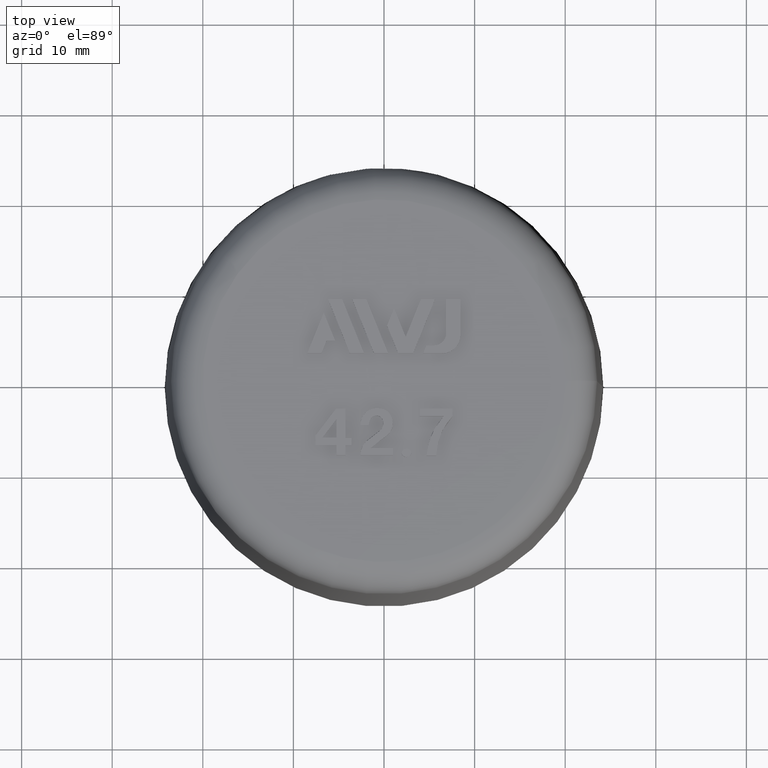
[diagram: clean part render]
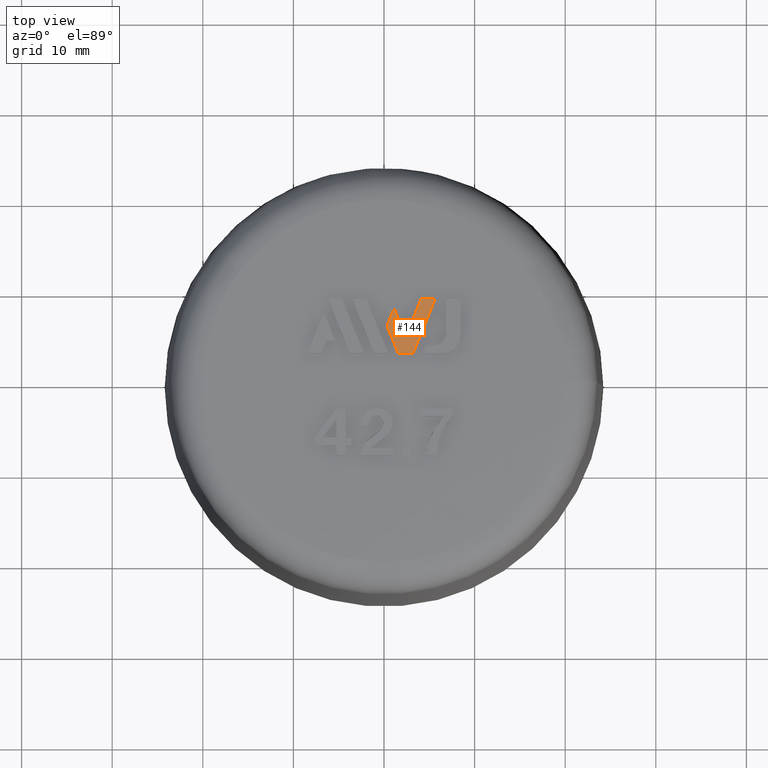
[diagram: same view with one face highlighted and labeled with its STEP entity id]
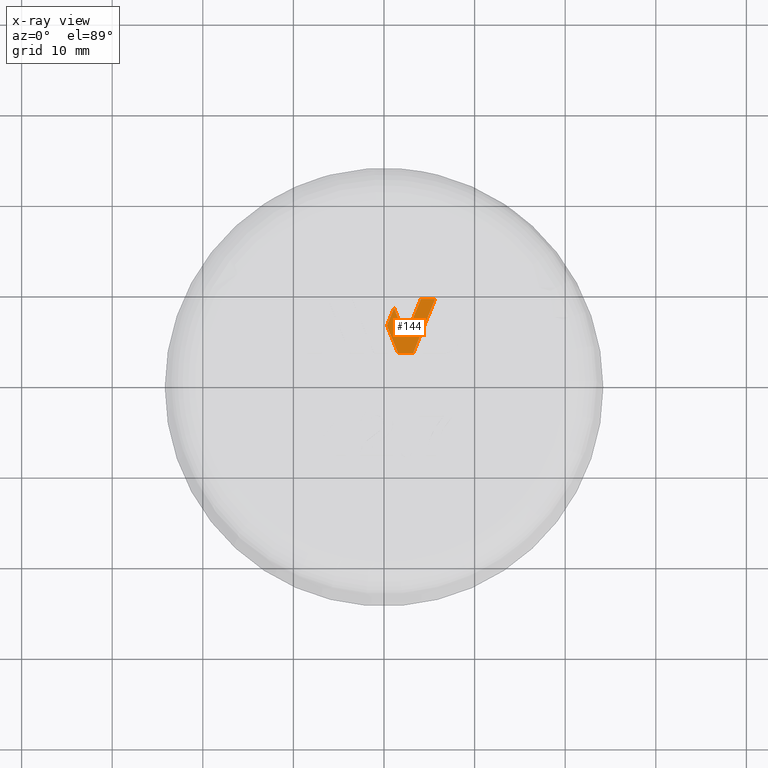
[diagram: x-ray of the same camera — body ghosted, the highlighted face saturated]
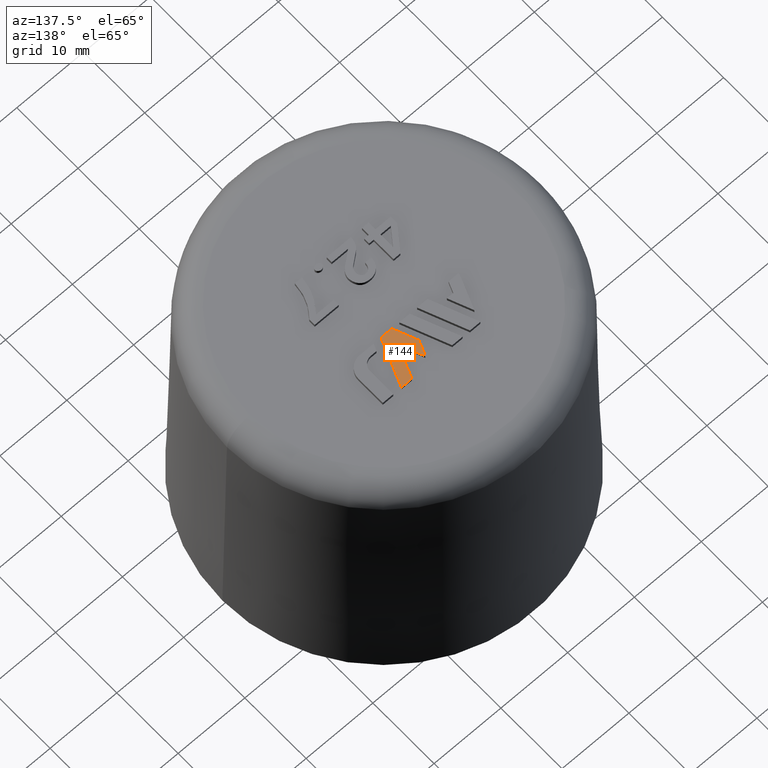
[diagram: same view with one face highlighted and labeled with its STEP entity id]
A machine part, top view. The second image highlights one B-rep face of the part: STEP entity #144.
The next image is the same camera in x-ray: the body ghosted, the highlighted face saturated — about 0% of this face is hidden behind the body in this view.
A second angle (auxiliary view) of the same face is appended — the face is thin or edge-on in the first view.
In plain terms, the highlighted planar face has unit normal (-0, -0, 1).
Its self-contained STEP definition (entity closure, byte-faithful):
#144 = ADVANCED_FACE( '', ( #303 ), #304, .T. );
#303 = FACE_OUTER_BOUND( '', #470, .T. );
#304 = PLANE( '', #471 );
#470 = EDGE_LOOP( '', ( #1051, #1052, #1053, #1054, #1055, #1056, #1057 ) );
#471 = AXIS2_PLACEMENT_3D( '', #1058, #1059, #1060 );
#1051 = ORIENTED_EDGE( '', *, *, #1223, .T. );
#1052 = ORIENTED_EDGE( '', *, *, #1234, .T. );
#1053 = ORIENTED_EDGE( '', *, *, #1233, .T. );
#1054 = ORIENTED_EDGE( '', *, *, #1231, .T. );
#1055 = ORIENTED_EDGE( '', *, *, #1229, .T. );
#1056 = ORIENTED_EDGE( '', *, *, #1227, .T. );
#1057 = ORIENTED_EDGE( '', *, *, #1225, .T. );
#1058 = CARTESIAN_POINT( '', ( 5.62738480200000, 8.99761385160217, 42.9997500000000 ) );
#1059 = DIRECTION( '', ( -1.83690953073357E-016, -3.83298815253545E-032, 1.00000000000000 ) );
#1060 = DIRECTION( '', ( -1.00000000000000, 6.69494841509799E-017, -1.83690953073357E-016 ) );
#1223 = EDGE_CURVE( '', #1493, #1495, #1497, .T. );
#1225 = EDGE_CURVE( '', #1498, #1493, #1500, .T. );
#1227 = EDGE_CURVE( '', #1501, #1498, #1503, .T. );
#1229 = EDGE_CURVE( '', #1504, #1501, #1506, .T. );
#1231 = EDGE_CURVE( '', #1507, #1504, #1509, .T. );
#1233 = EDGE_CURVE( '', #1510, #1507, #1512, .T. );
#1234 = EDGE_CURVE( '', #1495, #1510, #1513, .T. );
#1493 = VERTEX_POINT( '', #2039 );
#1495 = VERTEX_POINT( '', #2042 );
#1497 = LINE( '', #2045, #2046 );
#1498 = VERTEX_POINT( '', #2047 );
#1500 = LINE( '', #2050, #2051 );
#1501 = VERTEX_POINT( '', #2052 );
#1503 = LINE( '', #2055, #2056 );
#1504 = VERTEX_POINT( '', #2057 );
#1506 = LINE( '', #2060, #2061 );
#1507 = VERTEX_POINT( '', #2062 );
#1509 = LINE( '', #2065, #2066 );
#1510 = VERTEX_POINT( '', #2067 );
#1512 = LINE( '', #2070, #2071 );
#1513 = LINE( '', #2072, #2073 );
#2039 = CARTESIAN_POINT( '', ( 3.20572770099999, 3.00350208760216, 42.9997500000000 ) );
#2042 = CARTESIAN_POINT( '', ( 5.62738480200000, 8.99761385160217, 42.9997500000000 ) );
#2045 = CARTESIAN_POINT( '', ( 3.20572770099999, 3.00350208760216, 42.9997500000000 ) );
#2046 = VECTOR( '', #2229, 1000.00000000000 );
#2047 = CARTESIAN_POINT( '', ( 1.56835514650000, 3.00350208760216, 42.9997500000000 ) );
#2050 = CARTESIAN_POINT( '', ( 1.56835514650000, 3.00350208760216, 42.9997500000000 ) );
#2051 = VECTOR( '', #2231, 1000.00000000000 );
#2052 = CARTESIAN_POINT( '', ( 0.334311734500001, 6.05733377210218, 42.9997500000000 ) );
#2055 = CARTESIAN_POINT( '', ( 0.334311734500004, 6.05733377210218, 42.9997500000000 ) );
#2056 = VECTOR( '', #2233, 1000.00000000000 );
#2057 = CARTESIAN_POINT( '', ( 1.10878140200000, 7.97454901510217, 42.9997500000000 ) );
#2060 = CARTESIAN_POINT( '', ( 1.10878140200000, 7.97454901510217, 42.9997500000000 ) );
#2061 = VECTOR( '', #2235, 1000.00000000000 );
#2062 = CARTESIAN_POINT( '', ( 2.38687113300000, 4.81131202210217, 42.9997500000000 ) );
#2065 = CARTESIAN_POINT( '', ( 2.38687113300000, 4.81131202210217, 42.9997500000000 ) );
#2066 = VECTOR( '', #2237, 1000.00000000000 );
#2067 = CARTESIAN_POINT( '', ( 4.07844546699999, 8.99761385160217, 42.9997500000000 ) );
#2070 = CARTESIAN_POINT( '', ( 4.07844546699999, 8.99761385160217, 42.9997500000000 ) );
#2071 = VECTOR( '', #2239, 1000.00000000000 );
#2072 = CARTESIAN_POINT( '', ( 5.62738480200000, 8.99761385160217, 42.9997500000000 ) );
#2073 = VECTOR( '', #2240, 1000.00000000000 );
#2229 = DIRECTION( '', ( 0.374590469627020, 0.927190368837278, 6.88088803779836E-017 ) );
#2231 = DIRECTION( '', ( 1.00000000000000, -1.14383329197221E-017, 1.83690953073357E-016 ) );
#2233 = DIRECTION( '', ( 0.374662791989133, -0.927161146888127, 6.88221653416086E-017 ) );
#2235 = DIRECTION( '', ( -0.374550228315492, -0.927206625552694, -6.88014884131160E-017 ) );
#2237 = DIRECTION( '', ( -0.374621466961798, 0.927177845125405, -6.88145743079517E-017 ) );
#2239 = DIRECTION( '', ( -0.374644407000048, -0.927168575990139, -6.88187881854414E-017 ) );
#2240 = DIRECTION( '', ( -1.00000000000000, 6.69494841509799E-017, -1.83690953073357E-016 ) );